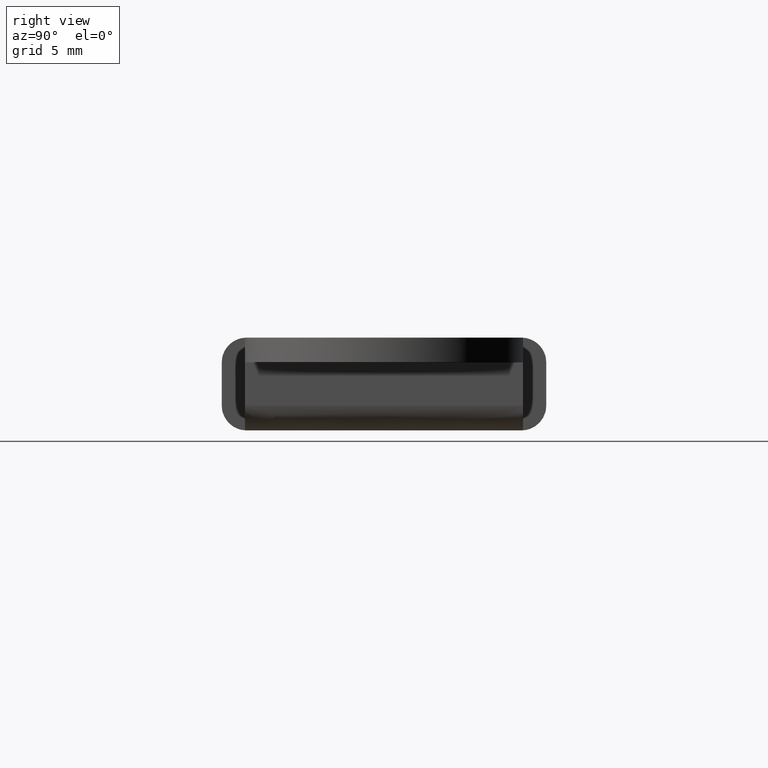
[diagram: clean part render]
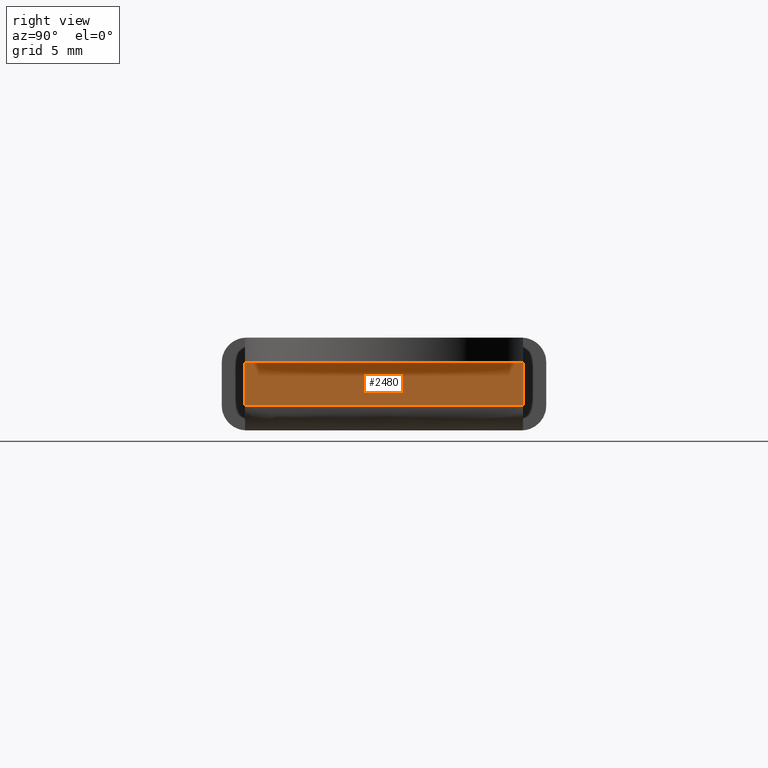
[diagram: same view with one face highlighted and labeled with its STEP entity id]
A machine part, right view. The second image highlights one B-rep face of the part: STEP entity #2480.
In plain terms, the highlighted face is a freeform B-spline surface patch.
Its self-contained STEP definition (entity closure, byte-faithful):
#1358=CARTESIAN_POINT('',(10.500000000000000,9.0,1.600000000000000));
#1359=VERTEX_POINT('',#1358);
#1373=CARTESIAN_POINT('',(10.500000000000000,-9.0,1.600000000000000));
#1374=VERTEX_POINT('',#1373);
#1375=CARTESIAN_POINT('',(10.500000000000000,-9.0,1.600000000000000));
#1376=CARTESIAN_POINT('',(10.500000000000000,9.0,1.600000000000000));
#1377=QUASI_UNIFORM_CURVE('',1,(#1375,#1376),.UNSPECIFIED.,.F.,.U.);
#1378=EDGE_CURVE('',#1374,#1359,#1377,.T.);
#1784=CARTESIAN_POINT('',(10.500000000000000,9.0,4.400000000000000));
#1785=VERTEX_POINT('',#1784);
#1786=CARTESIAN_POINT('',(10.500000000000000,-9.0,4.400000000000000));
#1787=VERTEX_POINT('',#1786);
#1788=CARTESIAN_POINT('',(10.500000000000000,9.0,4.400000000000000));
#1789=CARTESIAN_POINT('',(10.500000000000000,-9.0,4.400000000000000));
#1790=QUASI_UNIFORM_CURVE('',1,(#1788,#1789),.UNSPECIFIED.,.F.,.U.);
#1791=EDGE_CURVE('',#1785,#1787,#1790,.T.);
#2409=CARTESIAN_POINT('',(10.500000000000000,-9.0,1.600000000000000));
#2410=CARTESIAN_POINT('',(10.500000000000000,-9.0,4.400000000000000));
#2411=QUASI_UNIFORM_CURVE('',1,(#2409,#2410),.UNSPECIFIED.,.F.,.U.);
#2412=EDGE_CURVE('',#1374,#1787,#2411,.T.);
#2465=CARTESIAN_POINT('',(10.500000000000000,-9.899099965112507,4.539859994573057));
#2466=CARTESIAN_POINT('',(10.500000000000000,-9.899099965112507,1.460139930325091));
#2467=CARTESIAN_POINT('',(10.500000000000000,9.899100447910129,4.539859994573057));
#2468=CARTESIAN_POINT('',(10.500000000000000,9.899100447910129,1.460139930325091));
#2469=B_SPLINE_SURFACE_WITH_KNOTS('',1,1,((#2465,#2467),(#2466,#2468)),.UNSPECIFIED.,.F.,.F.,.U.,(2,2),(2,2),(0.0,3.079720064247966),(0.0,19.798200413022631),.UNSPECIFIED.);
#2470=ORIENTED_EDGE('',*,*,#2412,.F.);
#2471=ORIENTED_EDGE('',*,*,#1378,.T.);
#2472=CARTESIAN_POINT('',(10.500000000000000,9.0,1.600000000000000));
#2473=CARTESIAN_POINT('',(10.500000000000000,9.0,4.400000000000000));
#2474=QUASI_UNIFORM_CURVE('',1,(#2472,#2473),.UNSPECIFIED.,.F.,.U.);
#2475=EDGE_CURVE('',#1359,#1785,#2474,.T.);
#2476=ORIENTED_EDGE('',*,*,#2475,.T.);
#2477=ORIENTED_EDGE('',*,*,#1791,.T.);
#2478=EDGE_LOOP('',(#2470,#2471,#2476,#2477));
#2479=FACE_OUTER_BOUND('',#2478,.T.);
#2480=ADVANCED_FACE('',(#2479),#2469,.T.);